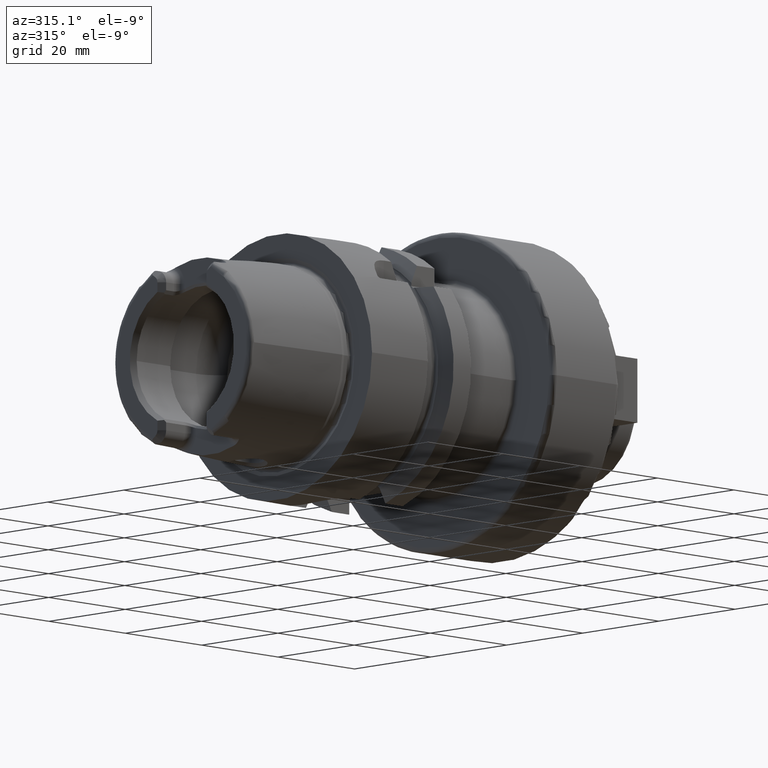
[diagram: clean part render]
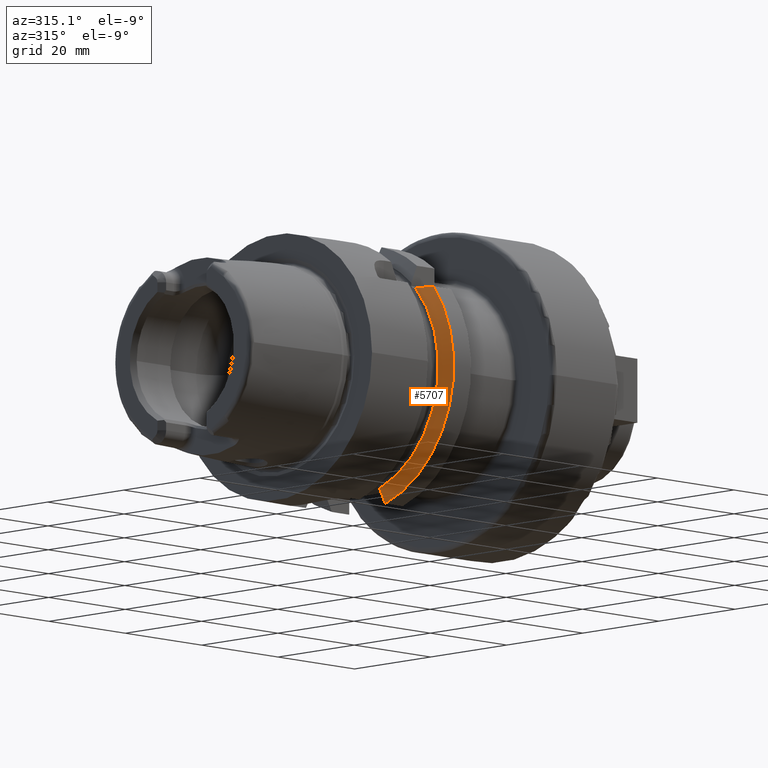
[diagram: same view with one face highlighted and labeled with its STEP entity id]
A machine part, auxiliary view. The second image highlights one B-rep face of the part: STEP entity #5707.
In plain terms, the highlighted conical surface has half-angle 60 deg.
Its self-contained STEP definition (entity closure, byte-faithful):
#1023=CARTESIAN_POINT('',(2.139193283149E1,0.E0,0.E0));
#1024=DIRECTION('',(-1.E0,0.E0,0.E0));
#1025=DIRECTION('',(0.E0,-2.807E-1,-9.597955563556E-1));
#1026=AXIS2_PLACEMENT_3D('',#1023,#1024,#1025);
#1941=CARTESIAN_POINT('',(1.99125E1,0.E0,0.E0));
#1942=DIRECTION('',(-1.E0,0.E0,0.E0));
#1943=DIRECTION('',(0.E0,-3.127570026704E-1,-9.498331733945E-1));
#1944=AXIS2_PLACEMENT_3D('',#1941,#1942,#1943);
#2058=CARTESIAN_POINT('',(1.99125E1,-7.0175E0,-2.131192663117E1));
#2059=CARTESIAN_POINT('',(2.006811666437E1,-7.0175E0,-2.159569853632E1));
#2060=CARTESIAN_POINT('',(2.038519487445E1,-7.0175E0,-2.217279119970E1));
#2061=CARTESIAN_POINT('',(2.087809730565E1,-7.0175E0,-2.306665585329E1));
#2062=CARTESIAN_POINT('',(2.121868469876E1,-7.0175E0,-2.368224465230E1));
#2063=CARTESIAN_POINT('',(2.139193283149E1,-7.0175E0,-2.399488890889E1));
#2149=CARTESIAN_POINT('',(1.99125E1,-1.636523825010E1,1.535E1));
#2150=CARTESIAN_POINT('',(2.005777044718E1,-1.671021589054E1,1.535E1));
#2151=CARTESIAN_POINT('',(2.036082860334E1,-1.741962945744E1,1.535E1));
#2152=CARTESIAN_POINT('',(2.085085341992E1,-1.853580810939E1,1.535E1));
#2153=CARTESIAN_POINT('',(2.120690576891E1,-1.932662776812E1,1.535E1));
#2154=CARTESIAN_POINT('',(2.139193283149E1,-1.973265060756E1,1.535E1));
#3203=CARTESIAN_POINT('',(1.99125E1,-7.0175E0,-2.131192663117E1));
#3205=VERTEX_POINT('',#3203);
#3206=VERTEX_POINT('',#2063);
#3251=CARTESIAN_POINT('',(1.99125E1,-1.636523825010E1,1.535E1));
#3252=VERTEX_POINT('',#3251);
#3253=VERTEX_POINT('',#2154);
#5694=CARTESIAN_POINT('',(2.065221641574E1,0.E0,0.E0));
#5695=DIRECTION('',(1.E0,0.E0,0.E0));
#5696=DIRECTION('',(0.E0,-1.E0,0.E0));
#5697=AXIS2_PLACEMENT_3D('',#5694,#5695,#5696);
#5698=CONICAL_SURFACE('',#5697,2.371877358474E1,6.E1);
#5699=ORIENTED_EDGE('',*,*,#4603,.F.);
#5701=ORIENTED_EDGE('',*,*,#5700,.F.);
#5702=ORIENTED_EDGE('',*,*,#5676,.T.);
#5704=ORIENTED_EDGE('',*,*,#5703,.T.);
#5705=EDGE_LOOP('',(#5699,#5701,#5702,#5704));
#5706=FACE_OUTER_BOUND('',#5705,.F.);
#5707=ADVANCED_FACE('',(#5706),#5698,.T.);
#1027=CIRCLE('',#1026,2.5E1);
#1945=CIRCLE('',#1944,2.243754716948E1);
#2064=B_SPLINE_CURVE_WITH_KNOTS('',3,(#2058,#2059,#2060,#2061,#2062,#2063),
.UNSPECIFIED.,.F.,.F.,(4,1,1,4),(0.E0,3.333333333333E-1,6.666666666667E-1,1.E0),
.UNSPECIFIED.);
#2155=B_SPLINE_CURVE_WITH_KNOTS('',3,(#2149,#2150,#2151,#2152,#2153,#2154),
.UNSPECIFIED.,.F.,.F.,(4,1,1,4),(0.E0,3.333333333333E-1,6.666666666667E-1,1.E0),
.UNSPECIFIED.);
#4603=EDGE_CURVE('',#3206,#3253,#1027,.T.);
#5676=EDGE_CURVE('',#3205,#3252,#1945,.T.);
#5700=EDGE_CURVE('',#3205,#3206,#2064,.T.);
#5703=EDGE_CURVE('',#3252,#3253,#2155,.T.);